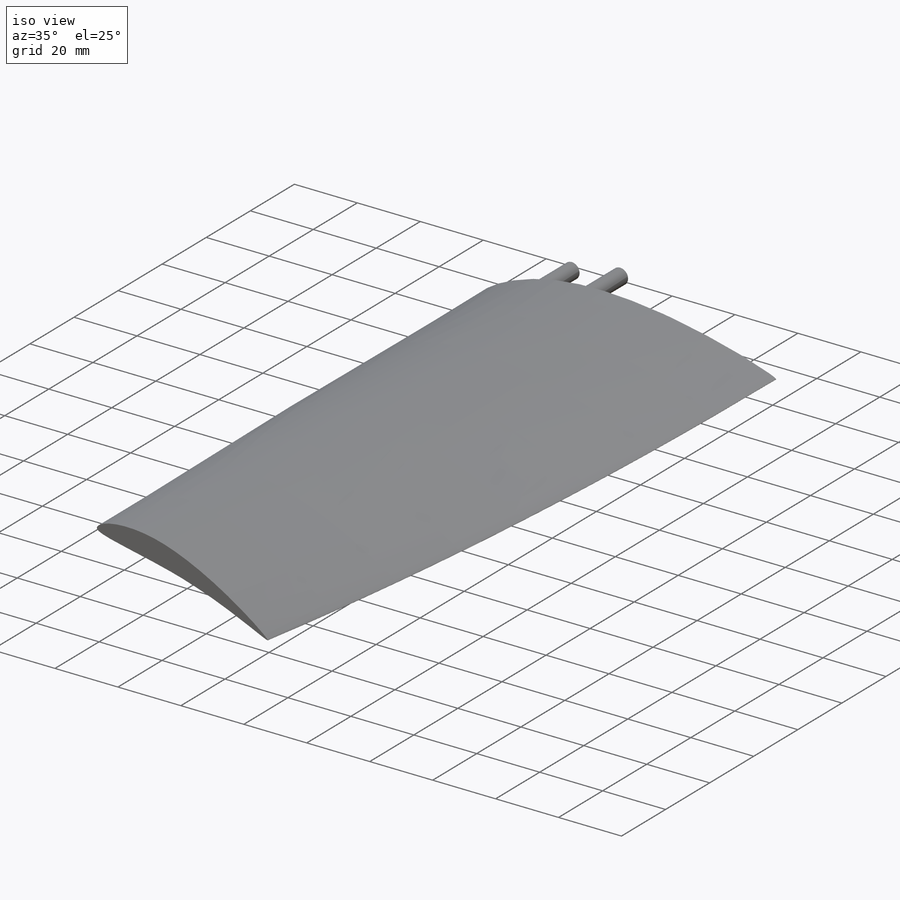
[diagram: iso view]
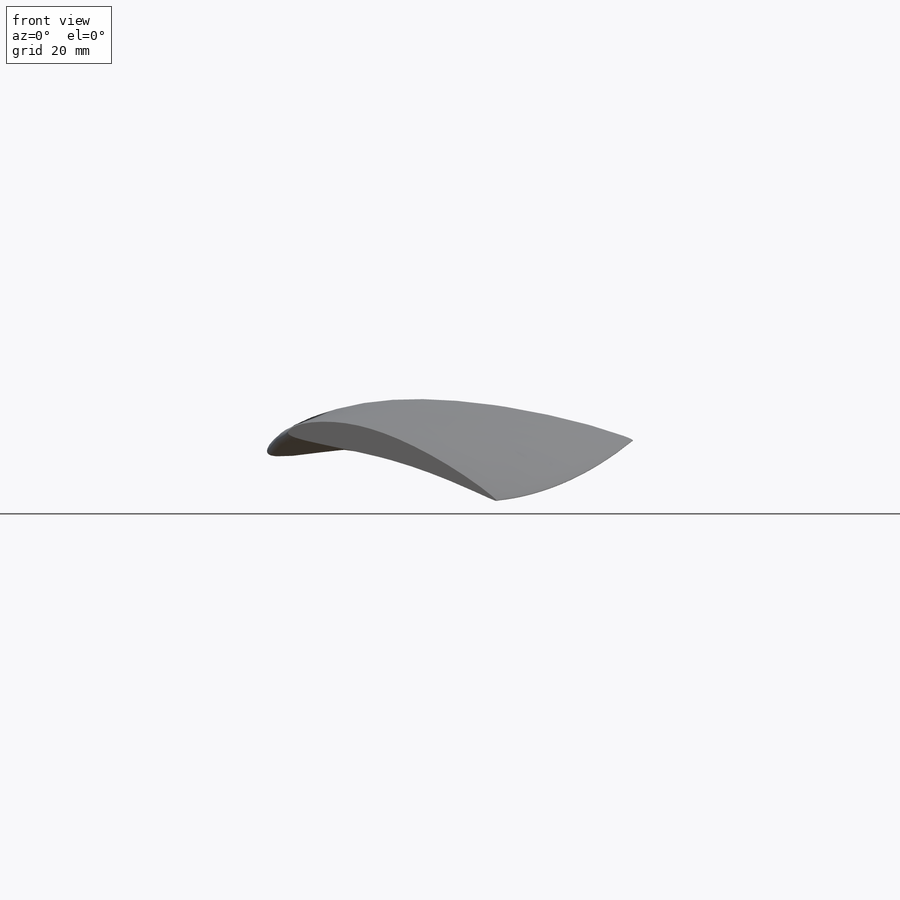
[diagram: front view]
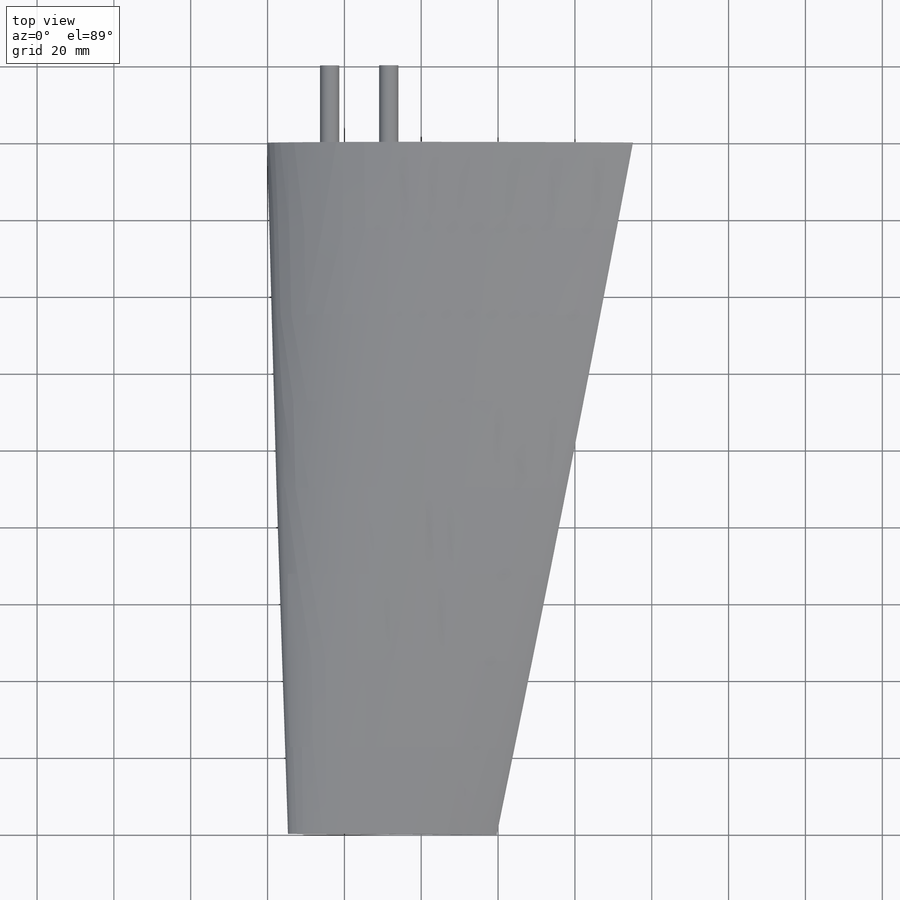
[diagram: top view]
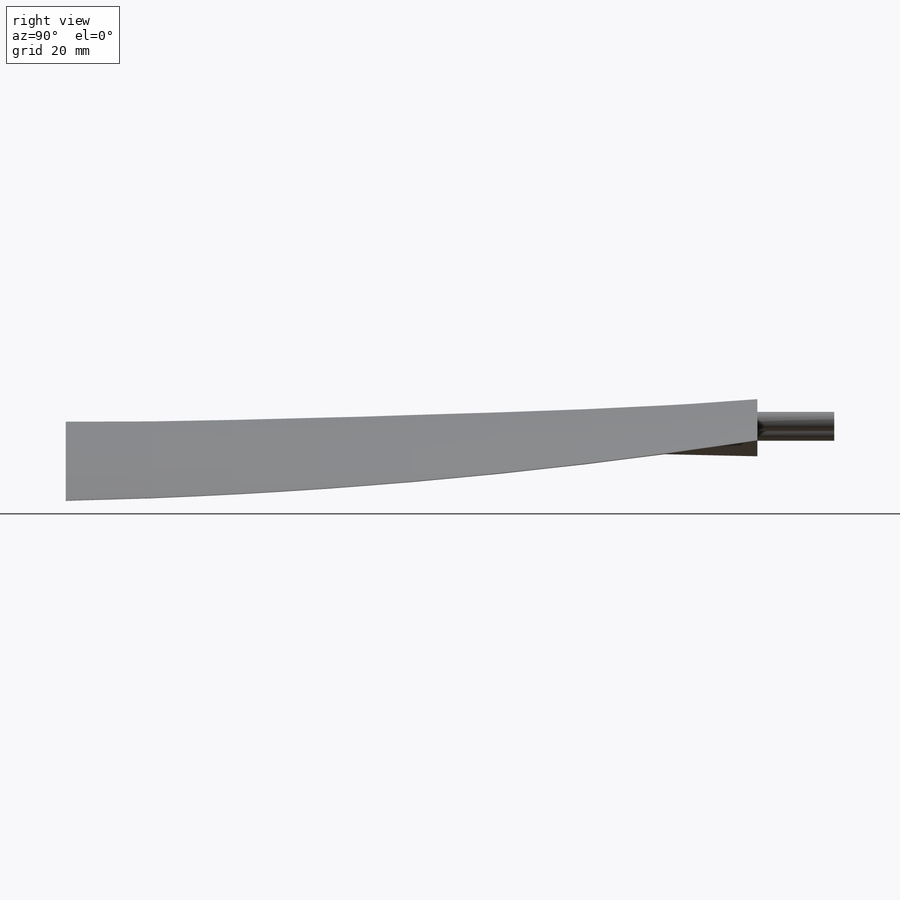
[diagram: right view]
SOLIDWORKS PART (.sldprt)
format: sldprt  version: not decoded by parser v0  size: 194,048 bytes
history: native  units: mm
features: sketch x9, plane x2, extrude x2, material x1, cut_extrude x1 (+11 scaffold rows collapsed)
feature tree (26):
  scaffold x11  (default folders/planes/origin — collapsed)
  material  "Material <not specified>"
  sketch  "Sketch1"  dims[D1=~95.10527mm]
  plane  "Plane1"  Offset=90mm
  plane  "Plane2"  Offset=180mm
  sketch  "Sketch2"
  sketch  "Block1-2"
  sketch  "Sketch3"
  sketch  "Block1-4"
  sketch  "3DSketch1"
  sketch  "Sketch4"
  extrude  "Boss-Extrude1"  Depth=10mm
  sketch  "Sketch6"
  cut_extrude  "Cut-Extrude1"  Depth=10mm
  sketch  "Sketch7"  dims[D1=5.0mm D2=5.0mm]
  extrude  "Boss-Extrude2"  Depth=20mm
decode coverage: 5 of 12 modeling features carry decoded parameters
note: ~ marks probable driven/reference dimensions
note: suppression state not decoded; provenance and decode notes live in map.json
